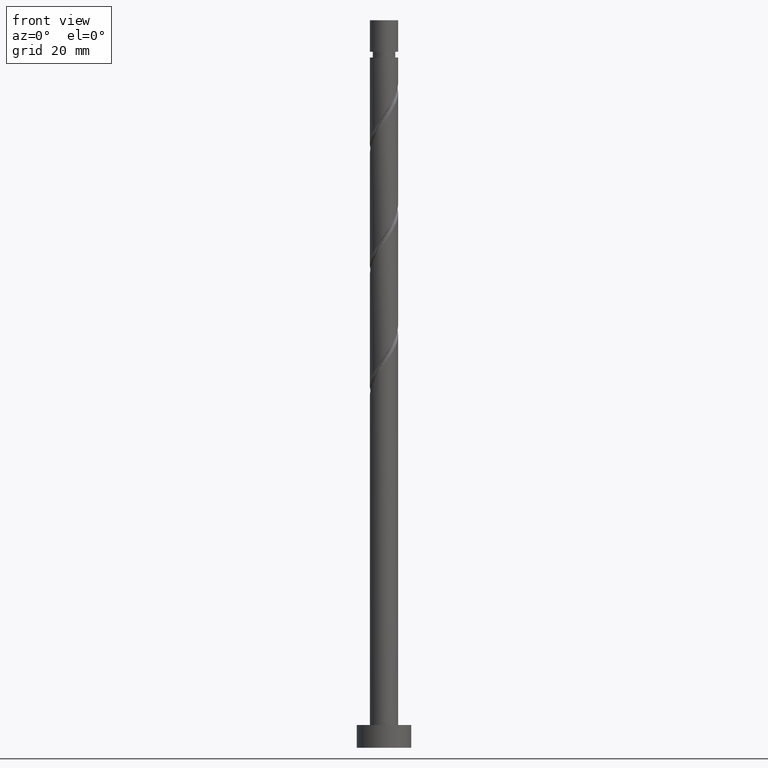
[diagram: clean part render]
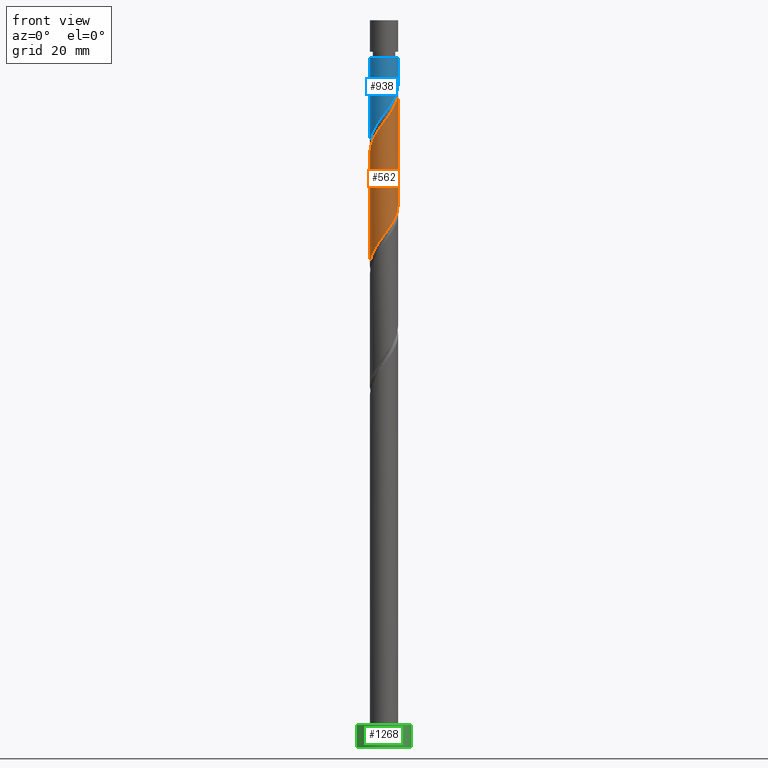
[diagram: same view with three faces highlighted in distinct colors, each labeled with its STEP entity id]
A machine part, front view with three faces highlighted in distinct colors.
Their STEP definitions:

[orange] entity #562 — the highlighted cylindrical surface (edge-blend (fillet) strip) has radius 3.1 mm, axis along (-0, -0, -1).
#74 = CARTESIAN_POINT ( 'NONE',  ( 2.161429555315031781, -2.222211123500800412, 140.9242214098270551 ) ) ;
#78 = CARTESIAN_POINT ( 'NONE',  ( 1.123504051545180626, -2.889245341981458992, 114.2575547431604264 ) ) ;
#111 = CARTESIAN_POINT ( 'NONE',  ( -1.841923831081431651, -2.532977777554305199, 110.0151305007361913 ) ) ;
#129 = VERTEX_POINT ( 'NONE', #430 ) ;
#141 = DIRECTION ( 'NONE',  ( -0.000000000000000000, -0.000000000000000000, -1.000000000000000000 ) ) ;
#191 = CARTESIAN_POINT ( 'NONE',  ( -3.019728287742889705, -0.7008859166835865739, 106.9848274704331601 ) ) ;
#219 = CARTESIAN_POINT ( 'NONE',  ( 3.069240442222553433, -0.6232358533614312801, 118.4999789855846899 ) ) ;
#227 = EDGE_CURVE ( 'NONE', #1032, #1036, #1225, .T. ) ;
#269 = VECTOR ( 'NONE', #141, 1000.000000000000000 ) ;
#324 = CARTESIAN_POINT ( 'NONE',  ( 1.053690668162833965, -2.949304290322760647, 139.1060395916452421 ) ) ;
#330 = CARTESIAN_POINT ( 'NONE',  ( -1.123504051545183957, -2.889245341981462989, 136.0757365613422678 ) ) ;
#341 = CARTESIAN_POINT ( 'NONE',  ( 2.480935279548630135, -1.911444469447291183, 141.5302820158876784 ) ) ;
#345 = CARTESIAN_POINT ( 'NONE',  ( 0.7080932853421639805, -3.050780837809066171, 113.6514941370998173 ) ) ;
#351 = CARTESIAN_POINT ( 'NONE',  ( -2.769328808163231237, -1.462695379553410557, 133.0454335310391798 ) ) ;
#399 = CARTESIAN_POINT ( 'NONE',  ( 3.100000000000000089, 3.796405077356794918E-16, 160.0000000000000000 ) ) ;
#409 = FACE_OUTER_BOUND ( 'NONE', #1561, .T. ) ;
#417 = CARTESIAN_POINT ( 'NONE',  ( 3.099999999999998757, -3.769118817281108271E-15, 119.3494334648855073 ) ) ;
#426 = AXIS2_PLACEMENT_3D ( 'NONE', #1543, #1153, #1017 ) ;
#430 = CARTESIAN_POINT ( 'NONE',  ( 3.100000000000003642, 2.108911719192988068E-15, 144.3171911729504586 ) ) ;
#448 = CARTESIAN_POINT ( 'NONE',  ( -2.919284625192894556, -1.042965616457420364, 132.4393729249785565 ) ) ;
#453 = CARTESIAN_POINT ( 'NONE',  ( -3.100000000000000089, 0.000000000000000000, 160.0000000000000000 ) ) ;
#474 = CARTESIAN_POINT ( 'NONE',  ( 2.919284625192889671, -1.042965616457419475, 117.8939183795240666 ) ) ;
#494 = CARTESIAN_POINT ( 'NONE',  ( -0.7080932853421646467, -3.050780837809071055, 136.6817971674028342 ) ) ;
#498 = CARTESIAN_POINT ( 'NONE',  ( -2.918956106357020186, -1.135057298223621114, 107.5908880764937692 ) ) ;
#562 = ADVANCED_FACE ( 'NONE', ( #409 ), #1401, .T. ) ;
#572 = EDGE_CURVE ( 'NONE', #129, #1032, #902, .T. ) ;
#592 = LINE ( 'NONE', #453, #1125 ) ;
#602 = CARTESIAN_POINT ( 'NONE',  ( -2.161429555315030004, -2.222211123500796415, 109.4090698946755964 ) ) ;
#622 = CARTESIAN_POINT ( 'NONE',  ( 3.099999999999998312, -3.769118817281108271E-15, 119.3494334648854931 ) ) ;
#691 = EDGE_CURVE ( 'NONE', #1611, #1036, #592, .T. ) ;
#715 = CARTESIAN_POINT ( 'NONE',  ( 1.891988720823647885, -2.455682935616096518, 115.4696759552816303 ) ) ;
#719 = CARTESIAN_POINT ( 'NONE',  ( 1.841923831081434537, -2.532977777554308751, 140.3181608037665171 ) ) ;
#721 = CARTESIAN_POINT ( 'NONE',  ( -2.480935279548628358, -1.911444469447286743, 108.8030092886149873 ) ) ;
#723 = ORIENTED_EDGE ( 'NONE', *, *, #572, .F. ) ;
#736 = CARTESIAN_POINT ( 'NONE',  ( -3.100000000000003197, -0.08920413222385156771, 131.1059558443353410 ) ) ;
#741 = CARTESIAN_POINT ( 'NONE',  ( -1.053690668162833521, -2.949304290322753985, 111.2272517128574236 ) ) ;
#750 = CARTESIAN_POINT ( 'NONE',  ( 0.6168922110061050290, -3.038000000000004253, 138.4999789855847325 ) ) ;
#753 = CARTESIAN_POINT ( 'NONE',  ( -0.1800937538493767587, -3.126695709677244750, 112.4393729249785849 ) ) ;
#822 =( BOUNDED_CURVE ( )  B_SPLINE_CURVE ( 2, ( #966, #736, #1387, #1486, #448, #351, #957, #872, #1354, #1230, #330, #494, #1514, #850, #750, #324, #1497, #719, #74, #341, #838, #1365, #861, #1242, #986 ),
 .UNSPECIFIED., .F., .T. ) 
 B_SPLINE_CURVE_WITH_KNOTS ( ( 3, 2, 2, 2, 2, 2, 2, 2, 2, 2, 2, 2, 3 ),
 ( 0.5545252162417514397, 0.5568181818181818787, 0.5681818181818181213, 0.5795454545454545858, 0.5909090909090908283, 0.6022727272727272929, 0.6136363636363636465, 0.6250000000000000000, 0.6363636363636363535, 0.6477272727272727071, 0.6590909090909091717, 0.6704545454545454142, 0.6795252162417517727 ),
 .UNSPECIFIED. ) 
 CURVE ( )  GEOMETRIC_REPRESENTATION_ITEM ( )  RATIONAL_B_SPLINE_CURVE ( ( 0.9061101570135633443, 0.9072237824201454526, 0.9090909090909228274, 0.8998376744372251768, 0.9090909090909228274, 0.8998376744372251768, 0.9090909090909228274, 0.8998376744372251768, 0.9090909090909228274, 0.8998376744372251768, 0.9090909090909228274, 0.8998376744372251768, 0.9090909090909228274, 0.8998376744372251768, 0.9090909090909228274, 0.8998376744372251768, 0.9090909090909228274, 0.8998376744372251768, 0.9090909090909228274, 0.8998376744372251768, 0.9090909090909228274, 0.8998376744372251768, 0.9090909090909228274, 0.9017048011080024406, 0.9061101570135636774 ) ) 
 REPRESENTATION_ITEM ( '' )  );
#838 = CARTESIAN_POINT ( 'NONE',  ( 2.699945692952827159, -1.523250883835457703, 142.1363426219483301 ) ) ;
#842 = DIRECTION ( 'NONE',  ( -0.000000000000000000, -0.000000000000000000, -1.000000000000000000 ) ) ;
#843 = CARTESIAN_POINT ( 'NONE',  ( 3.099999999999998312, -0.08920413222385632779, 119.2273354601672821 ) ) ;
#850 = CARTESIAN_POINT ( 'NONE',  ( 0.1800937538493756762, -3.126695709677248747, 137.8939183795240240 ) ) ;
#861 = CARTESIAN_POINT ( 'NONE',  ( 3.019728287742894146, -0.7008859166835881283, 143.3484638340695483 ) ) ;
#872 = CARTESIAN_POINT ( 'NONE',  ( -2.245062623899102938, -2.183656025078342555, 134.2575547431604264 ) ) ;
#902 = LINE ( 'NONE', #399, #269 ) ;
#922 = CARTESIAN_POINT ( 'NONE',  ( -3.100000000000003642, 2.078998077785995221E-15, 130.9838578396171442 ) ) ;
#957 = CARTESIAN_POINT ( 'NONE',  ( -2.507195716031167532, -1.823175702315877000, 133.6514941370998031 ) ) ;
#966 = CARTESIAN_POINT ( 'NONE',  ( -3.100000000000004086, 2.078998077785995221E-15, 130.9838578396171442 ) ) ;
#986 = CARTESIAN_POINT ( 'NONE',  ( 3.100000000000003642, 2.108911719192987674E-15, 144.3171911729504586 ) ) ;
#990 = CARTESIAN_POINT ( 'NONE',  ( 3.094870455675655663, -0.1782606591089400394, 119.1060395916452421 ) ) ;
#1017 = DIRECTION ( 'NONE',  ( -1.000000000000000000, 0.000000000000000000, 0.000000000000000000 ) ) ;
#1032 = VERTEX_POINT ( 'NONE', #417 ) ;
#1036 = VERTEX_POINT ( 'NONE', #1560 ) ;
#1091 = CARTESIAN_POINT ( 'NONE',  ( 1.538914817748198605, -2.727709846153853590, 114.8636153492210354 ) ) ;
#1121 = CARTESIAN_POINT ( 'NONE',  ( -1.447807249622132586, -2.741141033938529592, 110.6211911067967577 ) ) ;
#1125 = VECTOR ( 'NONE', #842, 1000.000000000000000 ) ;
#1152 = EDGE_CURVE ( 'NONE', #1611, #129, #822, .T. ) ;
#1153 = DIRECTION ( 'NONE',  ( -0.000000000000000000, -0.000000000000000000, -1.000000000000000000 ) ) ;
#1225 =( BOUNDED_CURVE ( )  B_SPLINE_CURVE ( 2, ( #622, #843, #990, #219, #474, #1369, #1608, #1248, #715, #1091, #78, #345, #1490, #753, #1382, #741, #1121, #111, #602, #721, #1391, #498, #191, #1637, #1518 ),
 .UNSPECIFIED., .F., .T. ) 
 B_SPLINE_CURVE_WITH_KNOTS ( ( 3, 2, 2, 2, 2, 2, 2, 2, 2, 2, 2, 2, 3 ),
 ( 0.5545252162417514397, 0.5568181818181817677, 0.5681818181818182323, 0.5795454545454545858, 0.5909090909090909394, 0.6022727272727272929, 0.6136363636363636465, 0.6250000000000000000, 0.6363636363636363535, 0.6477272727272727071, 0.6590909090909090606, 0.6704545454545454142, 0.6795252162417513286 ),
 .UNSPECIFIED. ) 
 CURVE ( )  GEOMETRIC_REPRESENTATION_ITEM ( )  RATIONAL_B_SPLINE_CURVE ( ( 0.9061101570135576821, 0.9072237824201399015, 0.9090909090909171653, 0.8998376744372194036, 0.9090909090909171653, 0.8998376744372194036, 0.9090909090909171653, 0.8998376744372194036, 0.9090909090909171653, 0.8998376744372194036, 0.9090909090909171653, 0.8998376744372194036, 0.9090909090909171653, 0.8998376744372194036, 0.9090909090909171653, 0.8998376744372194036, 0.9090909090909171653, 0.8998376744372194036, 0.9090909090909171653, 0.8998376744372194036, 0.9090909090909171653, 0.8998376744372194036, 0.9090909090909171653, 0.9017048011079968894, 0.9061101570135575711 ) ) 
 REPRESENTATION_ITEM ( '' )  );
#1230 = CARTESIAN_POINT ( 'NONE',  ( -1.538914817748201713, -2.727709846153856699, 135.4696759552816445 ) ) ;
#1242 = CARTESIAN_POINT ( 'NONE',  ( 3.100000000000008082, -0.3550396748938663971, 143.8312312199791165 ) ) ;
#1248 = CARTESIAN_POINT ( 'NONE',  ( 2.245062623899099830, -2.183656025078340335, 116.0757365613422394 ) ) ;
#1281 = ORIENTED_EDGE ( 'NONE', *, *, #227, .F. ) ;
#1349 = ORIENTED_EDGE ( 'NONE', *, *, #691, .T. ) ;
#1354 = CARTESIAN_POINT ( 'NONE',  ( -1.891988720823651660, -2.455682935616100071, 134.8636153492210497 ) ) ;
#1365 = CARTESIAN_POINT ( 'NONE',  ( 2.918956106357024627, -1.135057298223622890, 142.7424032280088966 ) ) ;
#1369 = CARTESIAN_POINT ( 'NONE',  ( 2.769328808163226796, -1.462695379553408781, 117.2878577734634717 ) ) ;
#1382 = CARTESIAN_POINT ( 'NONE',  ( -0.6168922110061053621, -3.037999999999999368, 111.8333123189180043 ) ) ;
#1387 = CARTESIAN_POINT ( 'NONE',  ( -3.094870455675660548, -0.1782606591089389569, 131.2272517128574236 ) ) ;
#1391 = CARTESIAN_POINT ( 'NONE',  ( -2.699945692952823606, -1.523250883835454372, 108.1969486825543498 ) ) ;
#1401 = CYLINDRICAL_SURFACE ( 'NONE', #426, 3.100000000000000089 ) ;
#1404 = ORIENTED_EDGE ( 'NONE', *, *, #1152, .F. ) ;
#1486 = CARTESIAN_POINT ( 'NONE',  ( -3.069240442222557430, -0.6232358533614309470, 131.8333123189180185 ) ) ;
#1490 = CARTESIAN_POINT ( 'NONE',  ( 0.2639997657463926117, -3.088738273743155016, 113.0454335310392224 ) ) ;
#1497 = CARTESIAN_POINT ( 'NONE',  ( 1.447807249622134362, -2.741141033938534477, 139.7121001977058654 ) ) ;
#1514 = CARTESIAN_POINT ( 'NONE',  ( -0.2639997657463944436, -3.088738273743159457, 137.2878577734635144 ) ) ;
#1518 = CARTESIAN_POINT ( 'NONE',  ( -3.099999999999998757, 3.140932347734256892E-15, 106.0161001315522213 ) ) ;
#1543 = CARTESIAN_POINT ( 'NONE',  ( 0.000000000000000000, 0.000000000000000000, 160.0000000000000000 ) ) ;
#1560 = CARTESIAN_POINT ( 'NONE',  ( -3.099999999999998757, 3.140932347734256892E-15, 106.0161001315522213 ) ) ;
#1561 = EDGE_LOOP ( 'NONE', ( #723, #1404, #1349, #1281 ) ) ;
#1608 = CARTESIAN_POINT ( 'NONE',  ( 2.507195716031162203, -1.823175702315874558, 116.6817971674028342 ) ) ;
#1611 = VERTEX_POINT ( 'NONE', #922 ) ;
#1637 = CARTESIAN_POINT ( 'NONE',  ( -3.099999999999999645, -0.3550396748938789981, 106.5020600845235350 ) ) ;

[blue] entity #938 — the highlighted cylindrical surface (edge-blend (fillet) strip) has radius 3.1 mm, axis along (-0, -0, -1).
#33 = CARTESIAN_POINT ( 'NONE',  ( 1.123504051545180626, -2.889245341981458992, 140.9242214098270836 ) ) ;
#135 = CYLINDRICAL_SURFACE ( 'NONE', #725, 3.100000000000000089 ) ;
#153 = VERTEX_POINT ( 'NONE', #294 ) ;
#158 = CARTESIAN_POINT ( 'NONE',  ( 3.099999999999993872, 3.796405077356790973E-16, 151.8333123189179901 ) ) ;
#161 = CARTESIAN_POINT ( 'NONE',  ( 2.507195716031162203, -1.823175702315874558, 143.3484638340694630 ) ) ;
#195 = DIRECTION ( 'NONE',  ( -1.000000000000000000, 0.000000000000000000, 0.000000000000000000 ) ) ;
#214 = CARTESIAN_POINT ( 'NONE',  ( -2.699945692952823606, -1.523250883835454372, 134.8636153492209928 ) ) ;
#276 = CARTESIAN_POINT ( 'NONE',  ( 3.099999999999998312, -0.08920413222385632779, 145.8940021268339535 ) ) ;
#292 = CARTESIAN_POINT ( 'NONE',  ( 0.7080932853421639805, -3.050780837809066171, 140.3181608037665171 ) ) ;
#294 = CARTESIAN_POINT ( 'NONE',  ( -3.099999999999993872, 0.000000000000000000, 151.8333123189179901 ) ) ;
#361 = CARTESIAN_POINT ( 'NONE',  ( 0.000000000000000000, 0.000000000000000000, 151.8333123189179901 ) ) ;
#378 = DIRECTION ( 'NONE',  ( -0.000000000000000000, -0.000000000000000000, -1.000000000000000000 ) ) ;
#460 = CARTESIAN_POINT ( 'NONE',  ( -2.480935279548628358, -1.911444469447286743, 135.4696759552816161 ) ) ;
#508 = ORIENTED_EDGE ( 'NONE', *, *, #1214, .T. ) ;
#510 = CARTESIAN_POINT ( 'NONE',  ( -3.100000000000000089, 0.000000000000000000, 160.0000000000000000 ) ) ;
#552 = CARTESIAN_POINT ( 'NONE',  ( 3.100000000000000089, 3.796405077356794918E-16, 160.0000000000000000 ) ) ;
#581 = CARTESIAN_POINT ( 'NONE',  ( -0.6168922110061053621, -3.037999999999999368, 138.4999789855846757 ) ) ;
#589 = CARTESIAN_POINT ( 'NONE',  ( -3.100000000000000533, -0.3550396748938768332, 133.1687267511901496 ) ) ;
#614 = ORIENTED_EDGE ( 'NONE', *, *, #1398, .T. ) ;
#633 = CARTESIAN_POINT ( 'NONE',  ( -3.099999999999998757, -1.211502476983213288E-15, 132.6827667982188643 ) ) ;
#653 = DIRECTION ( 'NONE',  ( -0.000000000000000000, -0.000000000000000000, -1.000000000000000000 ) ) ;
#661 =( BOUNDED_CURVE ( )  B_SPLINE_CURVE ( 2, ( #1430, #276, #797, #669, #1179, #1305, #161, #678, #1187, #1448, #33, #292, #1478, #1117, #581, #1603, #1095, #1377, #1642, #460, #214, #999, #1632, #589, #1104 ),
 .UNSPECIFIED., .F., .T. ) 
 B_SPLINE_CURVE_WITH_KNOTS ( ( 3, 2, 2, 2, 2, 2, 2, 2, 2, 2, 2, 2, 3 ),
 ( 0.3045252162417514952, 0.3068181818181818232, 0.3181818181818181768, 0.3295454545454545303, 0.3409090909090908839, 0.3522727272727272929, 0.3636363636363636465, 0.3750000000000000000, 0.3863636363636363535, 0.3977272727272727071, 0.4090909090909091161, 0.4204545454545454697, 0.4295252162417514397 ),
 .UNSPECIFIED. ) 
 CURVE ( )  GEOMETRIC_REPRESENTATION_ITEM ( )  RATIONAL_B_SPLINE_CURVE ( ( 0.9061101570135576821, 0.9072237824201399015, 0.9090909090909171653, 0.8998376744372194036, 0.9090909090909171653, 0.8998376744372194036, 0.9090909090909171653, 0.8998376744372194036, 0.9090909090909171653, 0.8998376744372194036, 0.9090909090909171653, 0.8998376744372194036, 0.9090909090909171653, 0.8998376744372194036, 0.9090909090909171653, 0.8998376744372194036, 0.9090909090909171653, 0.8998376744372194036, 0.9090909090909171653, 0.8998376744372194036, 0.9090909090909171653, 0.8998376744372194036, 0.9090909090909171653, 0.9017048011079968894, 0.9061101570135575711 ) ) 
 REPRESENTATION_ITEM ( '' )  );
#669 = CARTESIAN_POINT ( 'NONE',  ( 3.069240442222553433, -0.6232358533614312801, 145.1666456522513613 ) ) ;
#671 = VERTEX_POINT ( 'NONE', #978 ) ;
#678 = CARTESIAN_POINT ( 'NONE',  ( 2.245062623899099830, -2.183656025078340335, 142.7424032280088966 ) ) ;
#725 = AXIS2_PLACEMENT_3D ( 'NONE', #888, #653, #1166 ) ;
#754 = FACE_OUTER_BOUND ( 'NONE', #1647, .T. ) ;
#765 = ORIENTED_EDGE ( 'NONE', *, *, #1538, .F. ) ;
#797 = CARTESIAN_POINT ( 'NONE',  ( 3.094870455675655663, -0.1782606591089400394, 145.7727062583119277 ) ) ;
#803 = DIRECTION ( 'NONE',  ( -0.000000000000000000, -0.000000000000000000, -1.000000000000000000 ) ) ;
#888 = CARTESIAN_POINT ( 'NONE',  ( 0.000000000000000000, 0.000000000000000000, 160.0000000000000000 ) ) ;
#938 = ADVANCED_FACE ( 'NONE', ( #754 ), #135, .T. ) ;
#946 = VERTEX_POINT ( 'NONE', #633 ) ;
#978 = CARTESIAN_POINT ( 'NONE',  ( 3.099999999999998757, 5.683591867328654859E-16, 146.0161001315522071 ) ) ;
#999 = CARTESIAN_POINT ( 'NONE',  ( -2.918956106357020186, -1.135057298223621114, 134.2575547431604264 ) ) ;
#1075 = ORIENTED_EDGE ( 'NONE', *, *, #1096, .F. ) ;
#1095 = CARTESIAN_POINT ( 'NONE',  ( -1.447807249622132586, -2.741141033938529592, 137.2878577734634575 ) ) ;
#1096 = EDGE_CURVE ( 'NONE', #671, #946, #661, .T. ) ;
#1104 = CARTESIAN_POINT ( 'NONE',  ( -3.099999999999998757, -1.211502476983213288E-15, 132.6827667982188643 ) ) ;
#1117 = CARTESIAN_POINT ( 'NONE',  ( -0.1800937538493767587, -3.126695709677244750, 139.1060395916452990 ) ) ;
#1132 = DIRECTION ( 'NONE',  ( -0.000000000000000000, -0.000000000000000000, -1.000000000000000000 ) ) ;
#1166 = DIRECTION ( 'NONE',  ( -1.000000000000000000, 0.000000000000000000, 0.000000000000000000 ) ) ;
#1179 = CARTESIAN_POINT ( 'NONE',  ( 2.919284625192889671, -1.042965616457419475, 144.5605850461907096 ) ) ;
#1187 = CARTESIAN_POINT ( 'NONE',  ( 1.891988720823647885, -2.455682935616096518, 142.1363426219482733 ) ) ;
#1190 = LINE ( 'NONE', #552, #1604 ) ;
#1214 = EDGE_CURVE ( 'NONE', #1653, #153, #1556, .T. ) ;
#1305 = CARTESIAN_POINT ( 'NONE',  ( 2.769328808163226796, -1.462695379553408781, 143.9545244401301147 ) ) ;
#1312 = AXIS2_PLACEMENT_3D ( 'NONE', #361, #1132, #195 ) ;
#1377 = CARTESIAN_POINT ( 'NONE',  ( -1.841923831081431651, -2.532977777554305199, 136.6817971674028627 ) ) ;
#1398 = EDGE_CURVE ( 'NONE', #153, #946, #1436, .T. ) ;
#1430 = CARTESIAN_POINT ( 'NONE',  ( 3.099999999999998312, 5.683591867328654859E-16, 146.0161001315522071 ) ) ;
#1436 = LINE ( 'NONE', #510, #1472 ) ;
#1448 = CARTESIAN_POINT ( 'NONE',  ( 1.538914817748198605, -2.727709846153853590, 141.5302820158877353 ) ) ;
#1472 = VECTOR ( 'NONE', #378, 1000.000000000000000 ) ;
#1478 = CARTESIAN_POINT ( 'NONE',  ( 0.2639997657463926117, -3.088738273743155016, 139.7121001977058938 ) ) ;
#1538 = EDGE_CURVE ( 'NONE', #1653, #671, #1190, .T. ) ;
#1556 = CIRCLE ( 'NONE', #1312, 3.099999999999993872 ) ;
#1603 = CARTESIAN_POINT ( 'NONE',  ( -1.053690668162833521, -2.949304290322753985, 137.8939183795240524 ) ) ;
#1604 = VECTOR ( 'NONE', #803, 1000.000000000000000 ) ;
#1632 = CARTESIAN_POINT ( 'NONE',  ( -3.019728287742889705, -0.7008859166835865739, 133.6514941370998315 ) ) ;
#1642 = CARTESIAN_POINT ( 'NONE',  ( -2.161429555315030004, -2.222211123500796415, 136.0757365613422394 ) ) ;
#1647 = EDGE_LOOP ( 'NONE', ( #765, #508, #614, #1075 ) ) ;
#1653 = VERTEX_POINT ( 'NONE', #158 ) ;

[green] entity #1268 — the highlighted cylindrical surface (edge-blend (fillet) strip) has radius 6 mm, axis along (-0, -0, -1).
#1 = EDGE_CURVE ( 'NONE', #81, #994, #818, .T. ) ;
#18 = VERTEX_POINT ( 'NONE', #42 ) ;
#42 = CARTESIAN_POINT ( 'NONE',  ( 6.000000000000000888, 7.347880794884120722E-16, 5.000000000000000000 ) ) ;
#67 = CARTESIAN_POINT ( 'NONE',  ( 0.000000000000000000, 0.000000000000000000, 5.000000000000000000 ) ) ;
#81 = VERTEX_POINT ( 'NONE', #815 ) ;
#148 = DIRECTION ( 'NONE',  ( -1.000000000000000000, 0.000000000000000000, 0.000000000000000000 ) ) ;
#169 = VERTEX_POINT ( 'NONE', #685 ) ;
#204 = CIRCLE ( 'NONE', #617, 6.000000000000000888 ) ;
#238 = FACE_OUTER_BOUND ( 'NONE', #576, .T. ) ;
#249 = EDGE_CURVE ( 'NONE', #18, #169, #612, .T. ) ;
#257 = DIRECTION ( 'NONE',  ( 1.000000000000000000, 0.000000000000000000, 0.000000000000000000 ) ) ;
#277 = ORIENTED_EDGE ( 'NONE', *, *, #1, .T. ) ;
#281 = DIRECTION ( 'NONE',  ( -0.000000000000000000, -0.000000000000000000, -1.000000000000000000 ) ) ;
#300 = EDGE_CURVE ( 'NONE', #994, #169, #204, .T. ) ;
#336 = DIRECTION ( 'NONE',  ( -0.000000000000000000, -0.000000000000000000, -1.000000000000000000 ) ) ;
#355 = CARTESIAN_POINT ( 'NONE',  ( 0.000000000000000000, 0.000000000000000000, 0.000000000000000000 ) ) ;
#363 = DIRECTION ( 'NONE',  ( 1.000000000000000000, 0.000000000000000000, 0.000000000000000000 ) ) ;
#423 = EDGE_CURVE ( 'NONE', #81, #18, #1400, .T. ) ;
#487 = DIRECTION ( 'NONE',  ( 0.000000000000000000, 0.000000000000000000, 1.000000000000000000 ) ) ;
#515 = CARTESIAN_POINT ( 'NONE',  ( 0.000000000000000000, 0.000000000000000000, 5.000000000000000000 ) ) ;
#517 = ORIENTED_EDGE ( 'NONE', *, *, #423, .F. ) ;
#576 = EDGE_LOOP ( 'NONE', ( #1393, #517, #277, #910 ) ) ;
#612 = LINE ( 'NONE', #1645, #1220 ) ;
#617 = AXIS2_PLACEMENT_3D ( 'NONE', #355, #487, #363 ) ;
#685 = CARTESIAN_POINT ( 'NONE',  ( 6.000000000000000888, 7.347880794884120722E-16, 0.000000000000000000 ) ) ;
#760 = CYLINDRICAL_SURFACE ( 'NONE', #1043, 6.000000000000000888 ) ;
#815 = CARTESIAN_POINT ( 'NONE',  ( -6.000000000000000888, 0.000000000000000000, 5.000000000000000000 ) ) ;
#818 = LINE ( 'NONE', #953, #1157 ) ;
#910 = ORIENTED_EDGE ( 'NONE', *, *, #300, .T. ) ;
#953 = CARTESIAN_POINT ( 'NONE',  ( -6.000000000000000888, 0.000000000000000000, 5.000000000000000000 ) ) ;
#994 = VERTEX_POINT ( 'NONE', #1193 ) ;
#1043 = AXIS2_PLACEMENT_3D ( 'NONE', #67, #281, #148 ) ;
#1088 = AXIS2_PLACEMENT_3D ( 'NONE', #515, #1289, #257 ) ;
#1157 = VECTOR ( 'NONE', #1475, 1000.000000000000000 ) ;
#1193 = CARTESIAN_POINT ( 'NONE',  ( -6.000000000000000888, 0.000000000000000000, 0.000000000000000000 ) ) ;
#1220 = VECTOR ( 'NONE', #336, 1000.000000000000000 ) ;
#1268 = ADVANCED_FACE ( 'NONE', ( #238 ), #760, .T. ) ;
#1289 = DIRECTION ( 'NONE',  ( 0.000000000000000000, 0.000000000000000000, 1.000000000000000000 ) ) ;
#1393 = ORIENTED_EDGE ( 'NONE', *, *, #249, .F. ) ;
#1400 = CIRCLE ( 'NONE', #1088, 6.000000000000000888 ) ;
#1475 = DIRECTION ( 'NONE',  ( -0.000000000000000000, -0.000000000000000000, -1.000000000000000000 ) ) ;
#1645 = CARTESIAN_POINT ( 'NONE',  ( 6.000000000000000888, 7.347880794884120722E-16, 5.000000000000000000 ) ) ;